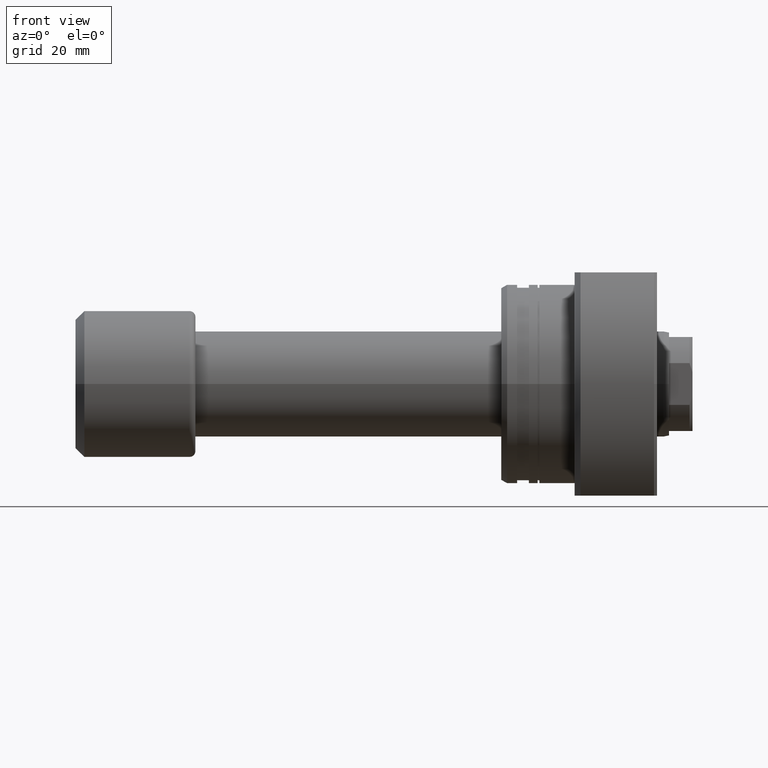
[diagram: clean part render]
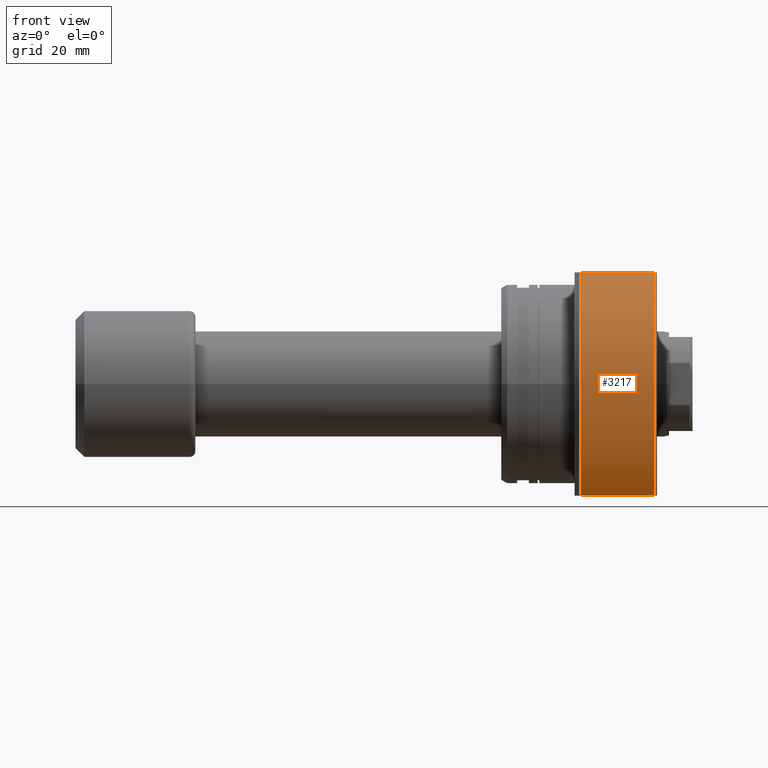
[diagram: same view with one face highlighted and labeled with its STEP entity id]
A machine part, front view. The second image highlights one B-rep face of the part: STEP entity #3217.
In plain terms, the highlighted cylindrical surface (partial cylindrical patch) has radius 27.5 mm, axis along (1, 0, 0).
Its self-contained STEP definition (entity closure, byte-faithful):
#56 = ORIENTED_EDGE ( 'NONE', *, *, #2349, .F. ) ;
#59 = DIRECTION ( 'NONE',  ( 1.000000000000000000, 9.242617352055502386E-18, -0.000000000000000000 ) ) ;
#96 = DIRECTION ( 'NONE',  ( 1.000000000000000000, -2.886466111666351885E-14, -0.000000000000000000 ) ) ;
#160 = CARTESIAN_POINT ( 'NONE',  ( 26.00000000000007461, -19.88089535207091885, 19.00000000000001421 ) ) ;
#287 = LINE ( 'NONE', #1047, #1583 ) ;
#324 = ORIENTED_EDGE ( 'NONE', *, *, #1462, .T. ) ;
#383 = VECTOR ( 'NONE', #1169, 1000.000000000000000 ) ;
#567 = VERTEX_POINT ( 'NONE', #2609 ) ;
#656 = AXIS2_PLACEMENT_3D ( 'NONE', #2541, #1306, #1256 ) ;
#711 = CIRCLE ( 'NONE', #656, 27.49999999999991473 ) ;
#727 = DIRECTION ( 'NONE',  ( 1.000000000000000000, 9.242617352055502386E-18, -0.000000000000000000 ) ) ;
#819 = DIRECTION ( 'NONE',  ( 0.000000000000000000, 1.000000000000000000, 0.000000000000000000 ) ) ;
#892 = CARTESIAN_POINT ( 'NONE',  ( -1.360023205165816762E-12, -19.88089535207017278, -19.00000000000001066 ) ) ;
#913 = CYLINDRICAL_SURFACE ( 'NONE', #1158, 27.49999999999991473 ) ;
#914 = AXIS2_PLACEMENT_3D ( 'NONE', #3057, #59, #819 ) ;
#986 = EDGE_LOOP ( 'NONE', ( #1545, #324, #1753, #1023, #56 ) ) ;
#1023 = ORIENTED_EDGE ( 'NONE', *, *, #1285, .F. ) ;
#1047 = CARTESIAN_POINT ( 'NONE',  ( -1.360023205165816762E-12, -19.88089535207016922, 19.00000000000001421 ) ) ;
#1058 = EDGE_CURVE ( 'NONE', #2468, #3214, #1870, .T. ) ;
#1118 = CIRCLE ( 'NONE', #914, 27.49999999999991473 ) ;
#1158 = AXIS2_PLACEMENT_3D ( 'NONE', #1188, #3176, #2883 ) ;
#1169 = DIRECTION ( 'NONE',  ( 1.000000000000000000, -2.886466111666351885E-14, -0.000000000000000000 ) ) ;
#1188 = CARTESIAN_POINT ( 'NONE',  ( 26.50000000000000711, 2.449293598294708880E-16, 0.000000000000000000 ) ) ;
#1256 = DIRECTION ( 'NONE',  ( 0.000000000000000000, 1.000000000000000000, 0.000000000000000000 ) ) ;
#1285 = EDGE_CURVE ( 'NONE', #1386, #3214, #1898, .T. ) ;
#1306 = DIRECTION ( 'NONE',  ( 1.000000000000000000, 9.242617352055502386E-18, -0.000000000000000000 ) ) ;
#1369 = FACE_OUTER_BOUND ( 'NONE', #986, .T. ) ;
#1386 = VERTEX_POINT ( 'NONE', #3070 ) ;
#1402 = EDGE_CURVE ( 'NONE', #567, #2737, #287, .T. ) ;
#1462 = EDGE_CURVE ( 'NONE', #567, #2468, #1118, .T. ) ;
#1545 = ORIENTED_EDGE ( 'NONE', *, *, #1402, .F. ) ;
#1583 = VECTOR ( 'NONE', #96, 1000.000000000000000 ) ;
#1753 = ORIENTED_EDGE ( 'NONE', *, *, #1058, .T. ) ;
#1870 = LINE ( 'NONE', #892, #383 ) ;
#1898 = CIRCLE ( 'NONE', #1996, 27.49999999999991473 ) ;
#1996 = AXIS2_PLACEMENT_3D ( 'NONE', #2963, #727, #2258 ) ;
#2258 = DIRECTION ( 'NONE',  ( 0.000000000000000000, 1.000000000000000000, 0.000000000000000000 ) ) ;
#2349 = EDGE_CURVE ( 'NONE', #2737, #1386, #711, .T. ) ;
#2468 = VERTEX_POINT ( 'NONE', #2573 ) ;
#2541 = CARTESIAN_POINT ( 'NONE',  ( 26.00000000000008882, 2.403080511534438786E-16, 0.000000000000000000 ) ) ;
#2573 = CARTESIAN_POINT ( 'NONE',  ( 13.49999999999998757, -19.88089535207056358, -19.00000000000001066 ) ) ;
#2609 = CARTESIAN_POINT ( 'NONE',  ( 13.49999999999998757, -19.88089535207056002, 19.00000000000001421 ) ) ;
#2639 = CARTESIAN_POINT ( 'NONE',  ( 26.00000000000007461, -19.88089535207092240, -19.00000000000001066 ) ) ;
#2737 = VERTEX_POINT ( 'NONE', #160 ) ;
#2883 = DIRECTION ( 'NONE',  ( 0.000000000000000000, 1.000000000000000000, 0.000000000000000000 ) ) ;
#2963 = CARTESIAN_POINT ( 'NONE',  ( 26.00000000000008882, 2.403080511534438786E-16, 0.000000000000000000 ) ) ;
#3057 = CARTESIAN_POINT ( 'NONE',  ( 13.49999999999999112, 1.247753342527491952E-16, 0.000000000000000000 ) ) ;
#3070 = CARTESIAN_POINT ( 'NONE',  ( 26.00000000000008882, -27.49999999999991473, 0.000000000000000000 ) ) ;
#3176 = DIRECTION ( 'NONE',  ( 1.000000000000000000, 9.242617352055502386E-18, -0.000000000000000000 ) ) ;
#3214 = VERTEX_POINT ( 'NONE', #2639 ) ;
#3217 = ADVANCED_FACE ( 'NONE', ( #1369 ), #913, .T. ) ;